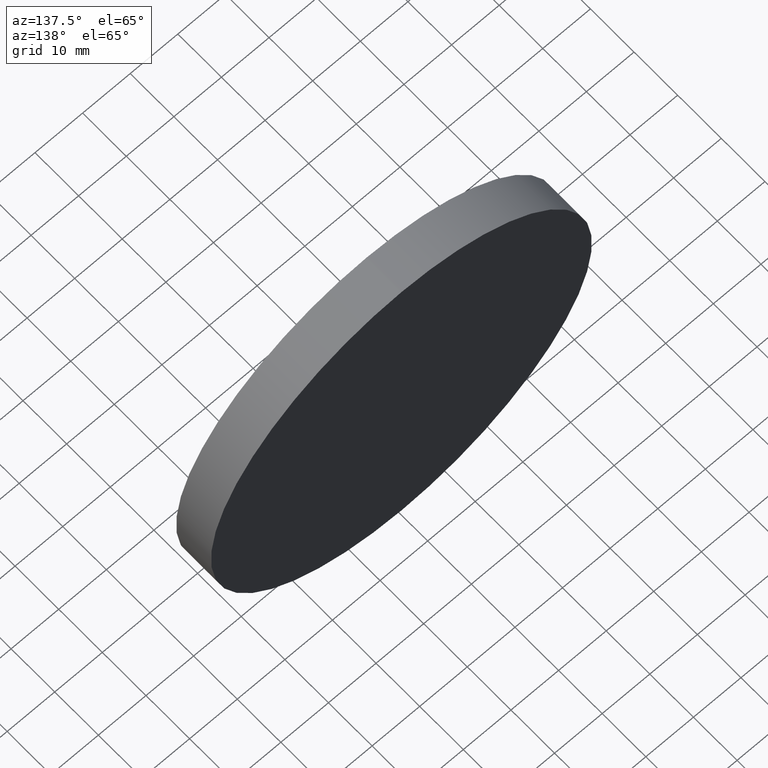
[diagram: clean part render]
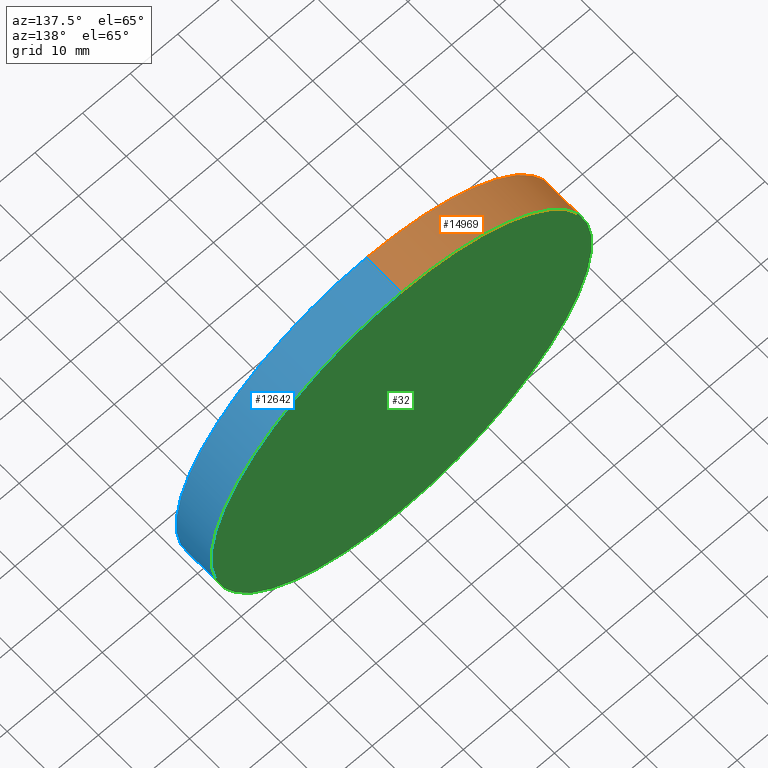
[diagram: same view with three faces highlighted in distinct colors, each labeled with its STEP entity id]
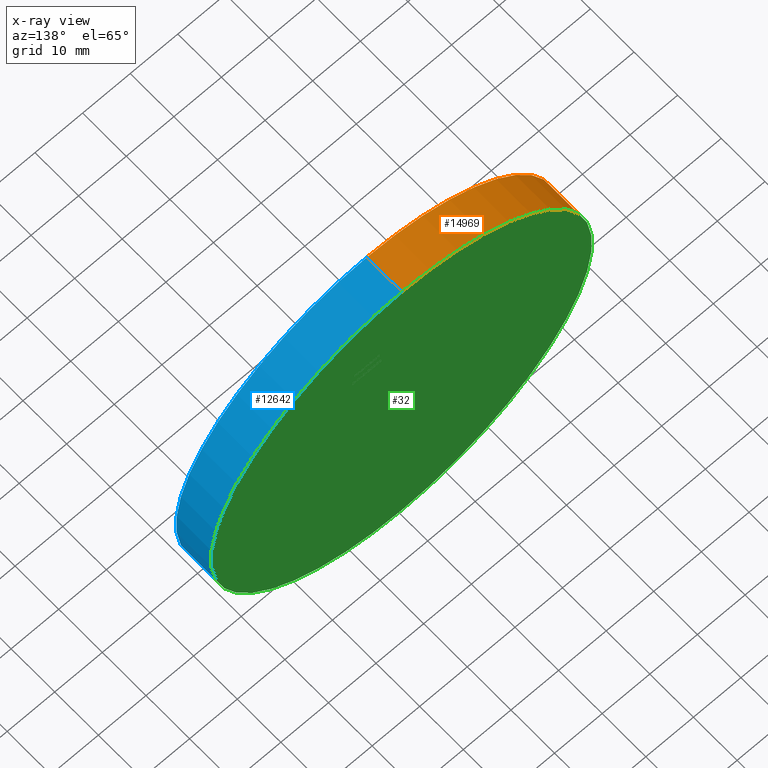
[diagram: x-ray of the same camera — body ghosted, the three highlighted faces saturated]
A machine part, auxiliary view with three faces highlighted in distinct colors.
The next image is the same camera in x-ray (body ghosted, the three faces saturated) — at least one of them is partly hidden behind the body in this view.
Their STEP definitions:

[orange] entity #14969 — the highlighted cylindrical surface (partial cylindrical patch) has radius 40 mm, axis along (-0, -1, -0).
#405 = ORIENTED_EDGE ( 'NONE', *, *, #8886, .F. ) ;
#452 = CARTESIAN_POINT ( 'NONE',  ( 0.000000000000000000, 4.000000000000000000, -40.00000000000000000 ) ) ;
#704 = DIRECTION ( 'NONE',  ( 0.000000000000000000, 0.000000000000000000, -1.000000000000000000 ) ) ;
#876 = EDGE_CURVE ( 'NONE', #11460, #2595, #8712, .T. ) ;
#901 = CARTESIAN_POINT ( 'NONE',  ( 4.898587196589413026E-15, 4.000000000000000000, 40.00000000000000000 ) ) ;
#1237 = FACE_OUTER_BOUND ( 'NONE', #3954, .T. ) ;
#2595 = VERTEX_POINT ( 'NONE', #3083 ) ;
#2685 = DIRECTION ( 'NONE',  ( 0.000000000000000000, 0.000000000000000000, 1.000000000000000000 ) ) ;
#3083 = CARTESIAN_POINT ( 'NONE',  ( 4.898587196589413026E-15, -4.000000000000000000, 40.00000000000000000 ) ) ;
#3124 = VERTEX_POINT ( 'NONE', #901 ) ;
#3321 = VECTOR ( 'NONE', #4706, 1000.000000000000000 ) ;
#3951 = EDGE_CURVE ( 'NONE', #13253, #11460, #11546, .T. ) ;
#3954 = EDGE_LOOP ( 'NONE', ( #405, #10583, #12636, #5563 ) ) ;
#4101 = CYLINDRICAL_SURFACE ( 'NONE', #4483, 40.00000000000000000 ) ;
#4109 = CARTESIAN_POINT ( 'NONE',  ( 0.000000000000000000, -4.000000000000000000, 0.000000000000000000 ) ) ;
#4448 = EDGE_CURVE ( 'NONE', #13253, #3124, #13064, .T. ) ;
#4483 = AXIS2_PLACEMENT_3D ( 'NONE', #9058, #6849, #704 ) ;
#4706 = DIRECTION ( 'NONE',  ( -0.000000000000000000, -1.000000000000000000, -0.000000000000000000 ) ) ;
#5563 = ORIENTED_EDGE ( 'NONE', *, *, #876, .T. ) ;
#6071 = DIRECTION ( 'NONE',  ( 0.000000000000000000, 0.000000000000000000, 1.000000000000000000 ) ) ;
#6549 = CARTESIAN_POINT ( 'NONE',  ( 4.898587196589413026E-15, 4.000000000000000000, 40.00000000000000000 ) ) ;
#6814 = AXIS2_PLACEMENT_3D ( 'NONE', #13496, #12182, #6071 ) ;
#6849 = DIRECTION ( 'NONE',  ( -0.000000000000000000, -1.000000000000000000, -0.000000000000000000 ) ) ;
#7464 = VECTOR ( 'NONE', #12710, 1000.000000000000000 ) ;
#8712 = CIRCLE ( 'NONE', #12653, 40.00000000000000000 ) ;
#8886 = EDGE_CURVE ( 'NONE', #3124, #2595, #10715, .T. ) ;
#9058 = CARTESIAN_POINT ( 'NONE',  ( 0.000000000000000000, 4.000000000000000000, 0.000000000000000000 ) ) ;
#10583 = ORIENTED_EDGE ( 'NONE', *, *, #4448, .F. ) ;
#10715 = LINE ( 'NONE', #6549, #7464 ) ;
#11460 = VERTEX_POINT ( 'NONE', #12242 ) ;
#11546 = LINE ( 'NONE', #14566, #3321 ) ;
#12182 = DIRECTION ( 'NONE',  ( 0.000000000000000000, 1.000000000000000000, 0.000000000000000000 ) ) ;
#12242 = CARTESIAN_POINT ( 'NONE',  ( 0.000000000000000000, -4.000000000000000000, -40.00000000000000000 ) ) ;
#12636 = ORIENTED_EDGE ( 'NONE', *, *, #3951, .T. ) ;
#12653 = AXIS2_PLACEMENT_3D ( 'NONE', #4109, #12678, #2685 ) ;
#12678 = DIRECTION ( 'NONE',  ( 0.000000000000000000, 1.000000000000000000, 0.000000000000000000 ) ) ;
#12710 = DIRECTION ( 'NONE',  ( -0.000000000000000000, -1.000000000000000000, -0.000000000000000000 ) ) ;
#13064 = CIRCLE ( 'NONE', #6814, 40.00000000000000000 ) ;
#13253 = VERTEX_POINT ( 'NONE', #452 ) ;
#13496 = CARTESIAN_POINT ( 'NONE',  ( 0.000000000000000000, 4.000000000000000000, 0.000000000000000000 ) ) ;
#14566 = CARTESIAN_POINT ( 'NONE',  ( 0.000000000000000000, 4.000000000000000000, -40.00000000000000000 ) ) ;
#14969 = ADVANCED_FACE ( 'NONE', ( #1237 ), #4101, .T. ) ;

[blue] entity #12642 — the highlighted cylindrical surface (partial cylindrical patch) has radius 40 mm, axis along (-0, -1, -0).
#452 = CARTESIAN_POINT ( 'NONE',  ( 0.000000000000000000, 4.000000000000000000, -40.00000000000000000 ) ) ;
#901 = CARTESIAN_POINT ( 'NONE',  ( 4.898587196589413026E-15, 4.000000000000000000, 40.00000000000000000 ) ) ;
#1454 = CARTESIAN_POINT ( 'NONE',  ( 0.000000000000000000, -4.000000000000000000, 0.000000000000000000 ) ) ;
#2013 = EDGE_CURVE ( 'NONE', #2595, #11460, #5433, .T. ) ;
#2237 = ORIENTED_EDGE ( 'NONE', *, *, #3951, .F. ) ;
#2595 = VERTEX_POINT ( 'NONE', #3083 ) ;
#3083 = CARTESIAN_POINT ( 'NONE',  ( 4.898587196589413026E-15, -4.000000000000000000, 40.00000000000000000 ) ) ;
#3124 = VERTEX_POINT ( 'NONE', #901 ) ;
#3260 = DIRECTION ( 'NONE',  ( 0.000000000000000000, 1.000000000000000000, 0.000000000000000000 ) ) ;
#3321 = VECTOR ( 'NONE', #4706, 1000.000000000000000 ) ;
#3340 = DIRECTION ( 'NONE',  ( -0.000000000000000000, -1.000000000000000000, -0.000000000000000000 ) ) ;
#3951 = EDGE_CURVE ( 'NONE', #13253, #11460, #11546, .T. ) ;
#3952 = AXIS2_PLACEMENT_3D ( 'NONE', #10589, #3260, #4473 ) ;
#4473 = DIRECTION ( 'NONE',  ( 0.000000000000000000, 0.000000000000000000, 1.000000000000000000 ) ) ;
#4560 = DIRECTION ( 'NONE',  ( 0.000000000000000000, 0.000000000000000000, -1.000000000000000000 ) ) ;
#4706 = DIRECTION ( 'NONE',  ( -0.000000000000000000, -1.000000000000000000, -0.000000000000000000 ) ) ;
#5329 = CIRCLE ( 'NONE', #3952, 40.00000000000000000 ) ;
#5433 = CIRCLE ( 'NONE', #15113, 40.00000000000000000 ) ;
#5457 = CYLINDRICAL_SURFACE ( 'NONE', #7049, 40.00000000000000000 ) ;
#6549 = CARTESIAN_POINT ( 'NONE',  ( 4.898587196589413026E-15, 4.000000000000000000, 40.00000000000000000 ) ) ;
#7049 = AXIS2_PLACEMENT_3D ( 'NONE', #9440, #3340, #4560 ) ;
#7242 = EDGE_CURVE ( 'NONE', #3124, #13253, #5329, .T. ) ;
#7464 = VECTOR ( 'NONE', #12710, 1000.000000000000000 ) ;
#8832 = ORIENTED_EDGE ( 'NONE', *, *, #8886, .T. ) ;
#8886 = EDGE_CURVE ( 'NONE', #3124, #2595, #10715, .T. ) ;
#9328 = ORIENTED_EDGE ( 'NONE', *, *, #2013, .T. ) ;
#9440 = CARTESIAN_POINT ( 'NONE',  ( 0.000000000000000000, 4.000000000000000000, 0.000000000000000000 ) ) ;
#9890 = FACE_OUTER_BOUND ( 'NONE', #10672, .T. ) ;
#10128 = DIRECTION ( 'NONE',  ( 0.000000000000000000, 1.000000000000000000, 0.000000000000000000 ) ) ;
#10589 = CARTESIAN_POINT ( 'NONE',  ( 0.000000000000000000, 4.000000000000000000, 0.000000000000000000 ) ) ;
#10672 = EDGE_LOOP ( 'NONE', ( #15778, #8832, #9328, #2237 ) ) ;
#10715 = LINE ( 'NONE', #6549, #7464 ) ;
#11346 = DIRECTION ( 'NONE',  ( 0.000000000000000000, 0.000000000000000000, 1.000000000000000000 ) ) ;
#11460 = VERTEX_POINT ( 'NONE', #12242 ) ;
#11546 = LINE ( 'NONE', #14566, #3321 ) ;
#12242 = CARTESIAN_POINT ( 'NONE',  ( 0.000000000000000000, -4.000000000000000000, -40.00000000000000000 ) ) ;
#12642 = ADVANCED_FACE ( 'NONE', ( #9890 ), #5457, .T. ) ;
#12710 = DIRECTION ( 'NONE',  ( -0.000000000000000000, -1.000000000000000000, -0.000000000000000000 ) ) ;
#13253 = VERTEX_POINT ( 'NONE', #452 ) ;
#14566 = CARTESIAN_POINT ( 'NONE',  ( 0.000000000000000000, 4.000000000000000000, -40.00000000000000000 ) ) ;
#15113 = AXIS2_PLACEMENT_3D ( 'NONE', #1454, #10128, #11346 ) ;
#15778 = ORIENTED_EDGE ( 'NONE', *, *, #7242, .F. ) ;

[green] entity #32 — the highlighted planar face has unit normal (0, 1, 0).
#32 = ADVANCED_FACE ( 'NONE', ( #13114 ), #8957, .T. ) ;
#452 = CARTESIAN_POINT ( 'NONE',  ( 0.000000000000000000, 4.000000000000000000, -40.00000000000000000 ) ) ;
#901 = CARTESIAN_POINT ( 'NONE',  ( 4.898587196589413026E-15, 4.000000000000000000, 40.00000000000000000 ) ) ;
#1676 = DIRECTION ( 'NONE',  ( 0.000000000000000000, 1.000000000000000000, 0.000000000000000000 ) ) ;
#3124 = VERTEX_POINT ( 'NONE', #901 ) ;
#3260 = DIRECTION ( 'NONE',  ( 0.000000000000000000, 1.000000000000000000, 0.000000000000000000 ) ) ;
#3952 = AXIS2_PLACEMENT_3D ( 'NONE', #10589, #3260, #4473 ) ;
#4448 = EDGE_CURVE ( 'NONE', #13253, #3124, #13064, .T. ) ;
#4473 = DIRECTION ( 'NONE',  ( 0.000000000000000000, 0.000000000000000000, 1.000000000000000000 ) ) ;
#5329 = CIRCLE ( 'NONE', #3952, 40.00000000000000000 ) ;
#6071 = DIRECTION ( 'NONE',  ( 0.000000000000000000, 0.000000000000000000, 1.000000000000000000 ) ) ;
#6814 = AXIS2_PLACEMENT_3D ( 'NONE', #13496, #12182, #6071 ) ;
#7242 = EDGE_CURVE ( 'NONE', #3124, #13253, #5329, .T. ) ;
#8181 = EDGE_LOOP ( 'NONE', ( #14664, #12831 ) ) ;
#8957 = PLANE ( 'NONE',  #13268 ) ;
#9011 = CARTESIAN_POINT ( 'NONE',  ( 0.000000000000000000, 4.000000000000000000, 0.000000000000000000 ) ) ;
#10228 = DIRECTION ( 'NONE',  ( 0.000000000000000000, -0.000000000000000000, 1.000000000000000000 ) ) ;
#10589 = CARTESIAN_POINT ( 'NONE',  ( 0.000000000000000000, 4.000000000000000000, 0.000000000000000000 ) ) ;
#12182 = DIRECTION ( 'NONE',  ( 0.000000000000000000, 1.000000000000000000, 0.000000000000000000 ) ) ;
#12831 = ORIENTED_EDGE ( 'NONE', *, *, #7242, .T. ) ;
#13064 = CIRCLE ( 'NONE', #6814, 40.00000000000000000 ) ;
#13114 = FACE_OUTER_BOUND ( 'NONE', #8181, .T. ) ;
#13253 = VERTEX_POINT ( 'NONE', #452 ) ;
#13268 = AXIS2_PLACEMENT_3D ( 'NONE', #9011, #1676, #10228 ) ;
#13496 = CARTESIAN_POINT ( 'NONE',  ( 0.000000000000000000, 4.000000000000000000, 0.000000000000000000 ) ) ;
#14664 = ORIENTED_EDGE ( 'NONE', *, *, #4448, .T. ) ;